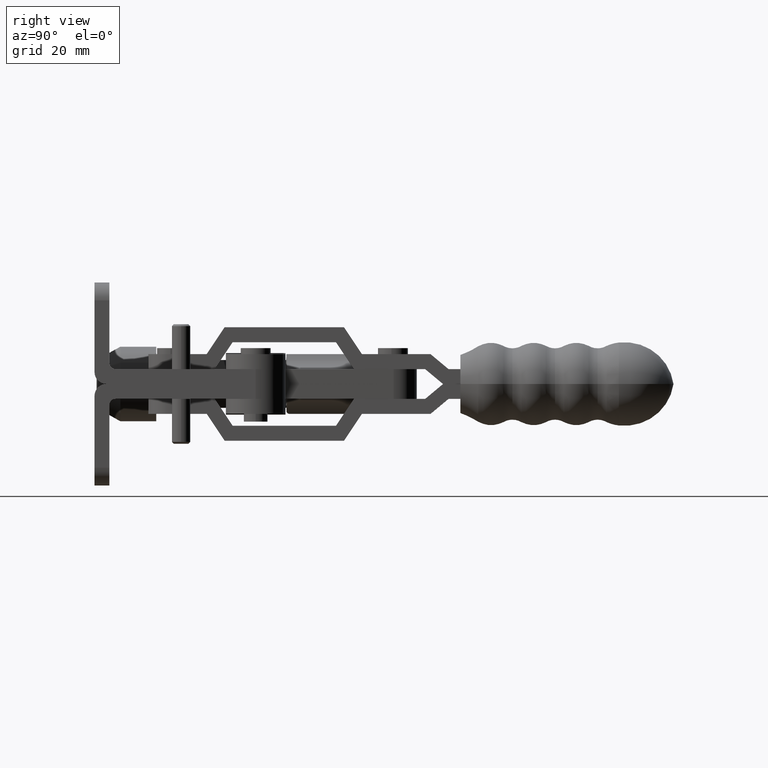
[diagram: clean part render]
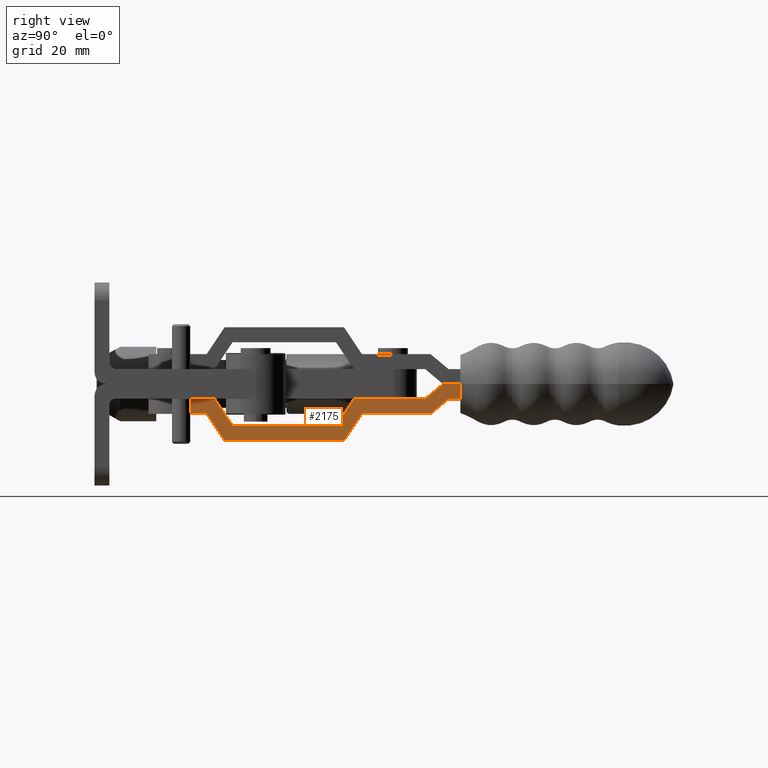
[diagram: same view with one face highlighted and labeled with its STEP entity id]
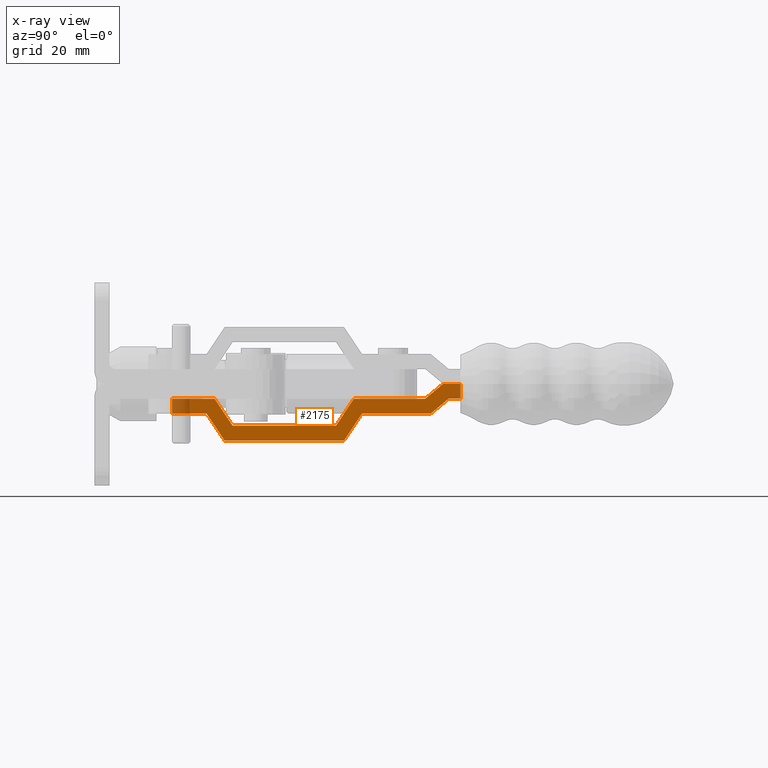
[diagram: x-ray of the same camera — body ghosted, the highlighted face saturated]
A machine part, right view. The second image highlights one B-rep face of the part: STEP entity #2175.
The next image is the same camera in x-ray: the body ghosted, the highlighted face saturated — about 6% of this face is hidden behind the body in this view.
In plain terms, the highlighted planar face has unit normal (1, -0.0014, -0).
Its self-contained STEP definition (entity closure, byte-faithful):
#98 = VECTOR ( 'NONE', #3580, 1000.000000000000000 ) ;
#100 = ORIENTED_EDGE ( 'NONE', *, *, #8063, .T. ) ;
#176 = VERTEX_POINT ( 'NONE', #8805 ) ;
#259 = VECTOR ( 'NONE', #1272, 1000.000000000000000 ) ;
#321 = VERTEX_POINT ( 'NONE', #5301 ) ;
#485 = CARTESIAN_POINT ( 'NONE',  ( -19.94621960835659600, 52.38151090848778300, -4.999999989275360300E-005 ) ) ;
#669 = VERTEX_POINT ( 'NONE', #5557 ) ;
#790 = EDGE_CURVE ( 'NONE', #2156, #1490, #2151, .T. ) ;
#799 = CARTESIAN_POINT ( 'NONE',  ( -20.00000372934293900, 12.99453788227833200, -2.499999999999992500 ) ) ;
#868 = VECTOR ( 'NONE', #6719, 999.9999999999998900 ) ;
#898 = VERTEX_POINT ( 'NONE', #7573 ) ;
#906 = CARTESIAN_POINT ( 'NONE',  ( -20.00000372934294600, 12.99453788227828700, 9.500000000000076400 ) ) ;
#984 = CARTESIAN_POINT ( 'NONE',  ( -19.97115773607199800, 34.11892065624178400, 23.47966460916807900 ) ) ;
#1006 = DIRECTION ( 'NONE',  ( 0.0007574594429917786100, 0.5546996790584247700, -0.8320502943378319500 ) ) ;
#1062 = VECTOR ( 'NONE', #1392, 1000.000000000000000 ) ;
#1089 = PLANE ( 'NONE',  #2473 ) ;
#1095 = VECTOR ( 'NONE', #7647, 1000.000000000000000 ) ;
#1173 = LINE ( 'NONE', #7137, #4964 ) ;
#1272 = DIRECTION ( 'NONE',  ( 0.001365529430395566700, 0.9999990676642527300, 1.177279159209693500E-015 ) ) ;
#1284 = CARTESIAN_POINT ( 'NONE',  ( -19.95657989345634700, 44.79450823400149100, -4.999999999999938700 ) ) ;
#1392 = DIRECTION ( 'NONE',  ( -0.001365529430395566700, -0.9999990676642527300, -4.934434473070992100E-016 ) ) ;
#1409 = LINE ( 'NONE', #3735, #6890 ) ;
#1490 = VERTEX_POINT ( 'NONE', #2666 ) ;
#1546 = CARTESIAN_POINT ( 'NONE',  ( -19.94211227961121900, 55.38937351806724500, -2.499999999999919200 ) ) ;
#1631 = EDGE_CURVE ( 'NONE', #321, #5378, #3069, .T. ) ;
#1781 = LINE ( 'NONE', #2338, #9437 ) ;
#1900 = ORIENTED_EDGE ( 'NONE', *, *, #3113, .F. ) ;
#1980 = LINE ( 'NONE', #3976, #7423 ) ;
#2014 = CARTESIAN_POINT ( 'NONE',  ( -19.99208365864665300, 18.79453247473083600, -4.999999999999985800 ) ) ;
#2050 = CARTESIAN_POINT ( 'NONE',  ( -19.93677971671562700, 59.29449471513289900, -2.499999999999910300 ) ) ;
#2151 = LINE ( 'NONE', #2050, #98 ) ;
#2156 = VERTEX_POINT ( 'NONE', #2319 ) ;
#2175 = ADVANCED_FACE ( 'NONE', ( #8827 ), #1089, .T. ) ;
#2319 = CARTESIAN_POINT ( 'NONE',  ( -19.93677971671562700, 59.29449471513289900, -2.499999999999910300 ) ) ;
#2338 = CARTESIAN_POINT ( 'NONE',  ( -19.98798707035544500, 21.79452967772377600, -9.499999999999989300 ) ) ;
#2429 = DIRECTION ( 'NONE',  ( -4.209980363289366700E-017, 1.623513735520322900E-015, -1.000000000000000000 ) ) ;
#2473 = AXIS2_PLACEMENT_3D ( 'NONE', #984, #8748, #8375 ) ;
#2475 = VERTEX_POINT ( 'NONE', #4484 ) ;
#2487 = CARTESIAN_POINT ( 'NONE',  ( -19.98616004742325800, 23.13248782651628600, -6.999999999999966200 ) ) ;
#2517 = ORIENTED_EDGE ( 'NONE', *, *, #6394, .T. ) ;
#2561 = EDGE_CURVE ( 'NONE', #3805, #2837, #9377, .T. ) ;
#2580 = EDGE_CURVE ( 'NONE', #7410, #898, #6724, .T. ) ;
#2666 = CARTESIAN_POINT ( 'NONE',  ( -19.93404865785483400, 61.29449285046141000, -2.499999999999905400 ) ) ;
#2704 = DIRECTION ( 'NONE',  ( 4.304733001691146300E-017, -9.296249920674827500E-016, 1.000000000000000000 ) ) ;
#2786 = VECTOR ( 'NONE', #7225, 1000.000000000000000 ) ;
#2837 = VERTEX_POINT ( 'NONE', #5319 ) ;
#2894 = LINE ( 'NONE', #7400, #868 ) ;
#3025 = VERTEX_POINT ( 'NONE', #9339 ) ;
#3069 = LINE ( 'NONE', #6947, #5729 ) ;
#3113 = EDGE_CURVE ( 'NONE', #321, #3025, #6259, .T. ) ;
#3139 = DIRECTION ( 'NONE',  ( -0.001365529430395566700, -0.9999990676642527300, -2.642801812658085700E-015 ) ) ;
#3180 = ORIENTED_EDGE ( 'NONE', *, *, #6074, .T. ) ;
#3227 = DIRECTION ( 'NONE',  ( 0.001365529430395566700, 0.9999990676642527300, 1.637615741306713100E-015 ) ) ;
#3249 = ORIENTED_EDGE ( 'NONE', *, *, #8632, .T. ) ;
#3295 = ORIENTED_EDGE ( 'NONE', *, *, #790, .T. ) ;
#3302 = EDGE_CURVE ( 'NONE', #669, #6163, #2894, .T. ) ;
#3385 = ORIENTED_EDGE ( 'NONE', *, *, #2580, .T. ) ;
#3455 = EDGE_CURVE ( 'NONE', #5052, #2475, #5475, .T. ) ;
#3490 = VECTOR ( 'NONE', #2429, 1000.000000000000000 ) ;
#3580 = DIRECTION ( 'NONE',  ( 0.001365529430395566700, 0.9999990676642527300, 1.707032447028069300E-015 ) ) ;
#3735 = CARTESIAN_POINT ( 'NONE',  ( -19.96067648174754800, 41.79451103100883100, -9.499999999999948500 ) ) ;
#3805 = VERTEX_POINT ( 'NONE', #5172 ) ;
#3976 = CARTESIAN_POINT ( 'NONE',  ( -20.00546584706452800, 8.994541611621127000, -4.999999999999999100 ) ) ;
#3980 = EDGE_CURVE ( 'NONE', #6163, #7410, #5115, .T. ) ;
#4355 = CARTESIAN_POINT ( 'NONE',  ( -19.98616004742325800, 23.13248782651628600, -6.999999999999966200 ) ) ;
#4412 = CARTESIAN_POINT ( 'NONE',  ( -19.95840691638857600, 43.45655008520890300, -2.499999999999924100 ) ) ;
#4484 = CARTESIAN_POINT ( 'NONE',  ( -20.00000372934292500, 12.99453788227830800, -4.999999999999994700 ) ) ;
#4775 = EDGE_LOOP ( 'NONE', ( #3295, #9104, #1900, #8838, #2517, #8652, #6766, #3385, #100, #5208, #9620, #3180, #3249, #4806, #7220, #8880 ) ) ;
#4791 = CARTESIAN_POINT ( 'NONE',  ( -19.94087630500681000, 56.29449751214026800, -4.999999999999919200 ) ) ;
#4806 = ORIENTED_EDGE ( 'NONE', *, *, #6932, .T. ) ;
#4905 = CARTESIAN_POINT ( 'NONE',  ( -19.96250350467976600, 40.45655288221625100, -6.999999999999950300 ) ) ;
#4964 = VECTOR ( 'NONE', #2704, 1000.000000000000000 ) ;
#5052 = VERTEX_POINT ( 'NONE', #799 ) ;
#5115 = LINE ( 'NONE', #2487, #1095 ) ;
#5172 = CARTESIAN_POINT ( 'NONE',  ( -19.95657989345634700, 44.79450823400149100, -4.999999999999938700 ) ) ;
#5208 = ORIENTED_EDGE ( 'NONE', *, *, #3455, .T. ) ;
#5301 = CARTESIAN_POINT ( 'NONE',  ( -19.93801577325180200, 58.38931072111585500, -4.999999988447332100E-005 ) ) ;
#5319 = CARTESIAN_POINT ( 'NONE',  ( -19.94087630500681000, 56.29449751214026800, -4.999999999999919200 ) ) ;
#5378 = VERTEX_POINT ( 'NONE', #1546 ) ;
#5475 = LINE ( 'NONE', #906, #3490 ) ;
#5507 = CARTESIAN_POINT ( 'NONE',  ( -19.98798707035544500, 21.79452967772377600, -9.499999999999989300 ) ) ;
#5557 = CARTESIAN_POINT ( 'NONE',  ( -19.95840691638857600, 43.45655008520890300, -2.499999999999924100 ) ) ;
#5729 = VECTOR ( 'NONE', #9629, 1000.000000000000100 ) ;
#5866 = LINE ( 'NONE', #6970, #7783 ) ;
#5957 = DIRECTION ( 'NONE',  ( 0.0007574594429917443500, 0.5546996790583915700, 0.8320502943378540500 ) ) ;
#6068 = VERTEX_POINT ( 'NONE', #5507 ) ;
#6074 = EDGE_CURVE ( 'NONE', #6281, #6068, #5866, .T. ) ;
#6163 = VERTEX_POINT ( 'NONE', #4905 ) ;
#6259 = LINE ( 'NONE', #485, #259 ) ;
#6281 = VERTEX_POINT ( 'NONE', #2014 ) ;
#6394 = EDGE_CURVE ( 'NONE', #5378, #669, #8986, .T. ) ;
#6485 = VECTOR ( 'NONE', #6496, 1000.000000000000100 ) ;
#6496 = DIRECTION ( 'NONE',  ( -0.0007574594429917497700, -0.5546996790584239900, 0.8320502943378324000 ) ) ;
#6529 = CARTESIAN_POINT ( 'NONE',  ( -19.99025663571444500, 20.13249062352341700, -2.499999999999976900 ) ) ;
#6719 = DIRECTION ( 'NONE',  ( -0.0007574594429916874300, -0.5546996790583904600, -0.8320502943378548200 ) ) ;
#6720 = EDGE_CURVE ( 'NONE', #2837, #2156, #6760, .T. ) ;
#6724 = LINE ( 'NONE', #6529, #6485 ) ;
#6760 = LINE ( 'NONE', #4791, #8719 ) ;
#6766 = ORIENTED_EDGE ( 'NONE', *, *, #3980, .T. ) ;
#6890 = VECTOR ( 'NONE', #5957, 1000.000000000000200 ) ;
#6932 = EDGE_CURVE ( 'NONE', #176, #3805, #1409, .T. ) ;
#6947 = CARTESIAN_POINT ( 'NONE',  ( -19.94211227961121900, 55.38937351806724500, -2.499999999999919200 ) ) ;
#6970 = CARTESIAN_POINT ( 'NONE',  ( -19.99208365864665300, 18.79453247473083600, -4.999999999999985800 ) ) ;
#7137 = CARTESIAN_POINT ( 'NONE',  ( -19.93404865785483100, 61.29449285046141000, 1.204388224955242100E-013 ) ) ;
#7147 = EDGE_CURVE ( 'NONE', #2475, #6281, #1980, .T. ) ;
#7220 = ORIENTED_EDGE ( 'NONE', *, *, #2561, .T. ) ;
#7225 = DIRECTION ( 'NONE',  ( 0.001365529430395566700, 0.9999990676642527300, 1.683792941199628400E-015 ) ) ;
#7400 = CARTESIAN_POINT ( 'NONE',  ( -19.96250350467976600, 40.45655288221625100, -6.999999999999950300 ) ) ;
#7410 = VERTEX_POINT ( 'NONE', #4355 ) ;
#7423 = VECTOR ( 'NONE', #3227, 1000.000000000000000 ) ;
#7471 = CARTESIAN_POINT ( 'NONE',  ( -20.00546584706454600, 8.994541611621164300, -2.500000000000005300 ) ) ;
#7573 = CARTESIAN_POINT ( 'NONE',  ( -19.99025663571444500, 20.13249062352341700, -2.499999999999976900 ) ) ;
#7647 = DIRECTION ( 'NONE',  ( -0.001365529430395566700, -0.9999990676642527300, -9.295653429488339400E-016 ) ) ;
#7783 = VECTOR ( 'NONE', #1006, 1000.000000000000100 ) ;
#8063 = EDGE_CURVE ( 'NONE', #898, #5052, #9079, .T. ) ;
#8271 = EDGE_CURVE ( 'NONE', #1490, #3025, #1173, .T. ) ;
#8375 = DIRECTION ( 'NONE',  ( 0.001365529430395566700, 0.9999990676642527300, 9.295653429488339400E-016 ) ) ;
#8632 = EDGE_CURVE ( 'NONE', #6068, #176, #1781, .T. ) ;
#8652 = ORIENTED_EDGE ( 'NONE', *, *, #3302, .T. ) ;
#8719 = VECTOR ( 'NONE', #9191, 1000.000000000000100 ) ;
#8748 = DIRECTION ( 'NONE',  ( 0.9999990676642527300, -0.001365529430395566700, -4.431672016822974400E-017 ) ) ;
#8805 = CARTESIAN_POINT ( 'NONE',  ( -19.96067648174754800, 41.79451103100883100, -9.499999999999948500 ) ) ;
#8822 = VECTOR ( 'NONE', #3139, 1000.000000000000000 ) ;
#8827 = FACE_OUTER_BOUND ( 'NONE', #4775, .T. ) ;
#8838 = ORIENTED_EDGE ( 'NONE', *, *, #1631, .T. ) ;
#8880 = ORIENTED_EDGE ( 'NONE', *, *, #6720, .T. ) ;
#8986 = LINE ( 'NONE', #4412, #1062 ) ;
#9040 = DIRECTION ( 'NONE',  ( 0.001365529430395566700, 0.9999990676642527300, 1.623454733339555200E-015 ) ) ;
#9079 = LINE ( 'NONE', #7471, #8822 ) ;
#9104 = ORIENTED_EDGE ( 'NONE', *, *, #8271, .T. ) ;
#9191 = DIRECTION ( 'NONE',  ( 0.001049028766346343400, 0.7682205633572023500, 0.6401843996644950300 ) ) ;
#9339 = CARTESIAN_POINT ( 'NONE',  ( -19.93404865785483100, 61.29449285046141000, -4.999999988226052500E-005 ) ) ;
#9377 = LINE ( 'NONE', #1284, #2786 ) ;
#9437 = VECTOR ( 'NONE', #9040, 1000.000000000000000 ) ;
#9620 = ORIENTED_EDGE ( 'NONE', *, *, #7147, .T. ) ;
#9629 = DIRECTION ( 'NONE',  ( -0.001049028766346341900, -0.7682205633572013500, -0.6401843996644963600 ) ) ;